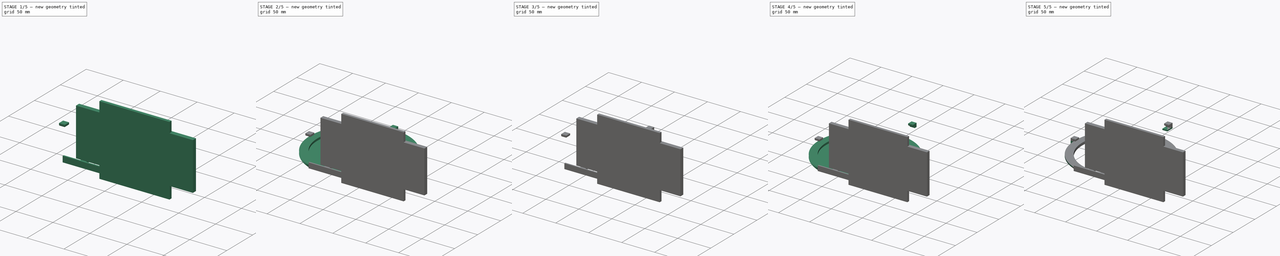
[diagram: build sequence overview — one tinted view per stage of 5, left to right]
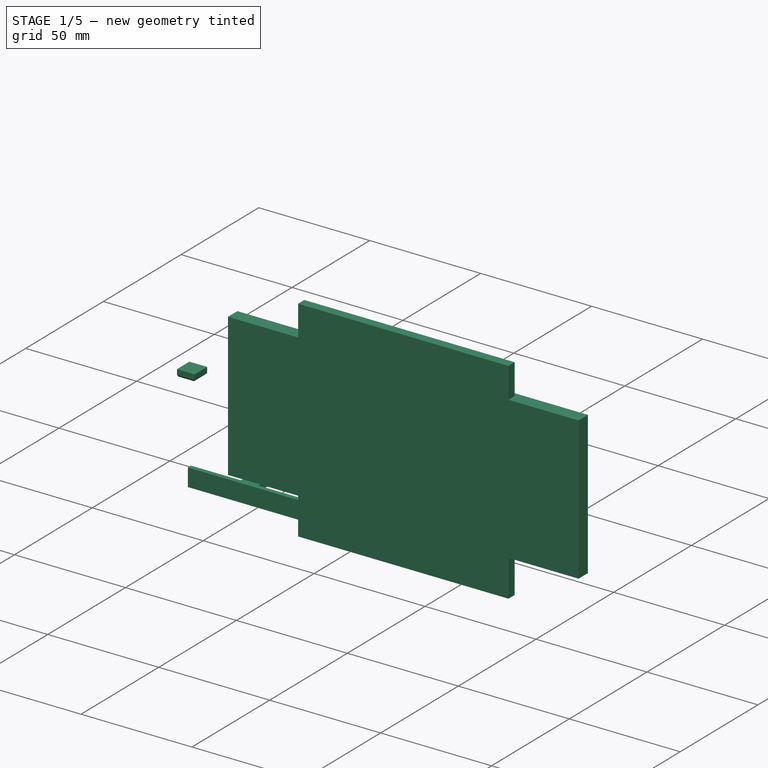
[diagram: stage 1 of 5 — iso view after this stage's code; geometry added in this stage tinted green]
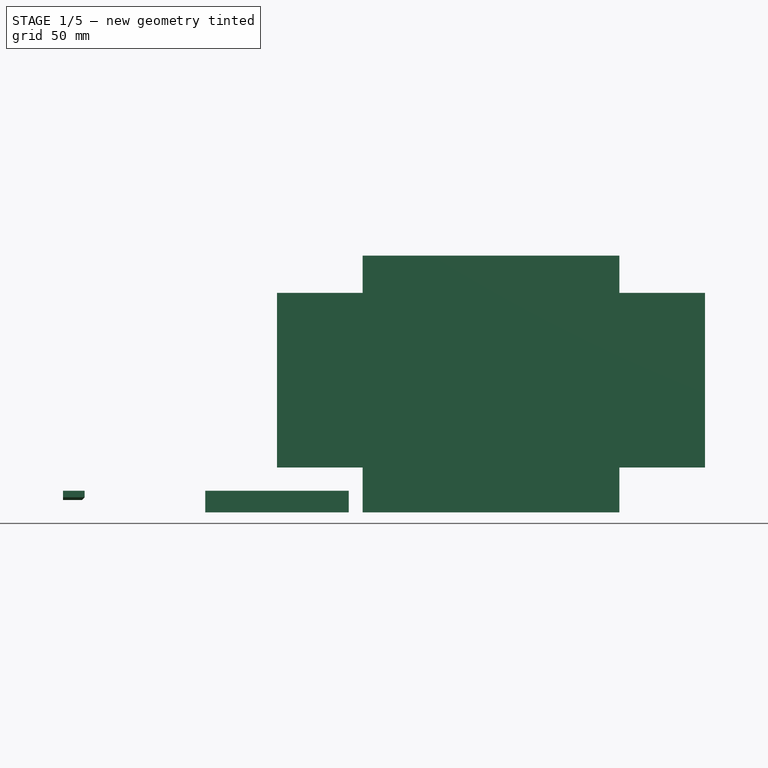
[diagram: stage 1 of 5 — front view after this stage's code; geometry added in this stage tinted green]
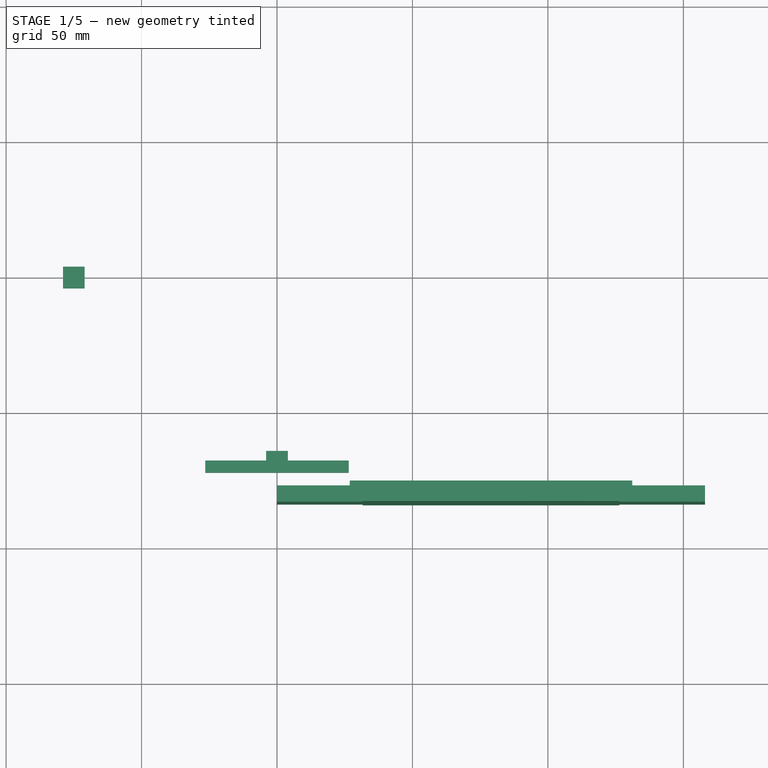
[diagram: stage 1 of 5 — top view after this stage's code; geometry added in this stage tinted green]
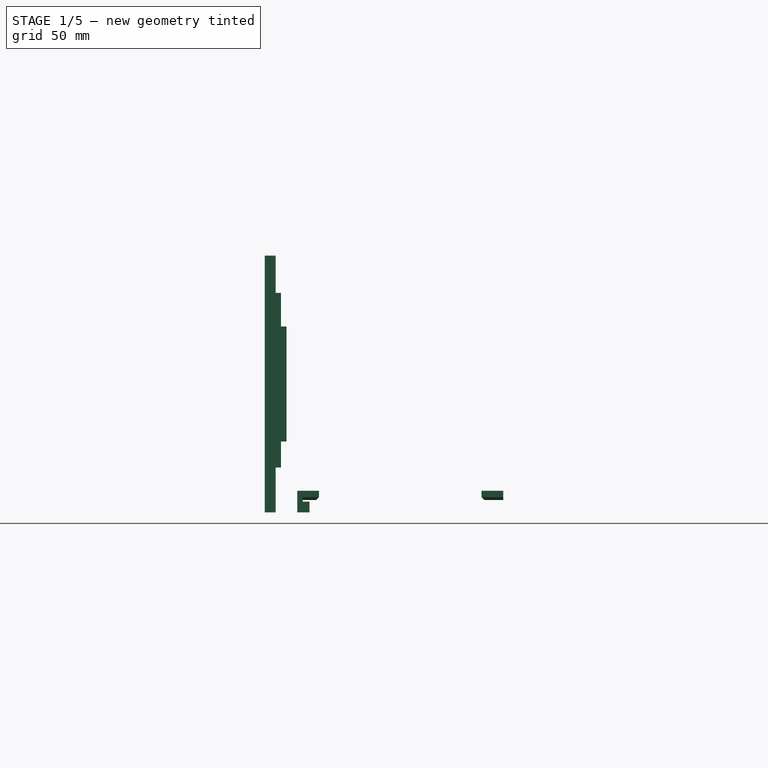
[diagram: stage 1 of 5 — right view after this stage's code; geometry added in this stage tinted green]
FCSTD DOCUMENT  (FreeCAD 0.19R0.19.2)
Label: waferHolder_010
License: All rights reserved
LicenseURL: http://en.wikipedia.org/wiki/All_rights_reserved
objects: Part::Box×21, Part::Chamfer×14, Part::Cut×8, Sketcher::SketchObject×5, Part::Extrusion×5, Part::MultiFuse×2
note: 55 computed .brp shape members not serialized (recipe doc carries the construction recipe); baked Part::Feature solids carry a one-line shape summary decoded from their .brp

FEATURE [Part::Box] Box006  label="holderBitLeft002"
  AttacherType = Attacher::AttachEngine3D
  Height = 3.4
  Length = 8
  Placement = pos=(-79,-4,4.6) rot=(0,0,1;0rad)
  Width = 8
FEATURE [Part::Chamfer] Chamfer005
  Base = -> Box006
  Edges = 1 edges r=1: [Edge8]
FEATURE [Part::Chamfer] Chamfer011
  Base = -> Chamfer005
  Edges = 1 edges r=1: [Edge5]
FEATURE [Part::Box] Box015  label="holderBottom"
  AttacherType = Attacher::AttachEngine3D
  Height = 4
  Length = 53
  Placement = pos=(-26.5,-72,0) rot=(0,0,1;0rad)
  Width = 4.5
FEATURE [Part::Box] Box016  label="holderBottom001"
  AttacherType = Attacher::AttachEngine3D
  Height = 4
  Length = 53
  Placement = pos=(-26.5,-72,4) rot=(0,0,1;0rad)
  Width = 2
FEATURE [Part::Box] Box017  label="holderBottom002"
  AttacherType = Attacher::AttachEngine3D
  Height = 3.4
  Length = 8
  Placement = pos=(-4,-72,4.6) rot=(0,0,1;0rad)
  Width = 8
FEATURE [Part::Chamfer] Chamfer013  label="holderBottom003"
  Base = -> Box017
  Edges = 3 edges r=1: [Edge4,Edge8,Edge11]
FEATURE [Part::Box] Box018  label="Cube"
  AttacherType = Attacher::AttachEngine3D
  Height = 64.44
  Length = 158
  Placement = pos=(0,-84,16.6) rot=(0,0,1;0rad)
  Width = 6
FEATURE [Part::Box] Box019  label="Cube001"
  AttacherType = Attacher::AttachEngine3D
  Height = 94.8
  Length = 94.8
  Placement = pos=(31.6,-84,0) rot=(0,0,1;0rad)
  Width = 4
FEATURE [Part::Box] Box020  label="Cube002"
  AttacherType = Attacher::AttachEngine3D
  Height = 42.44
  Length = 104.28
  Placement = pos=(26.86,-84,26.18) rot=(0,0,1;0rad)
  Width = 8
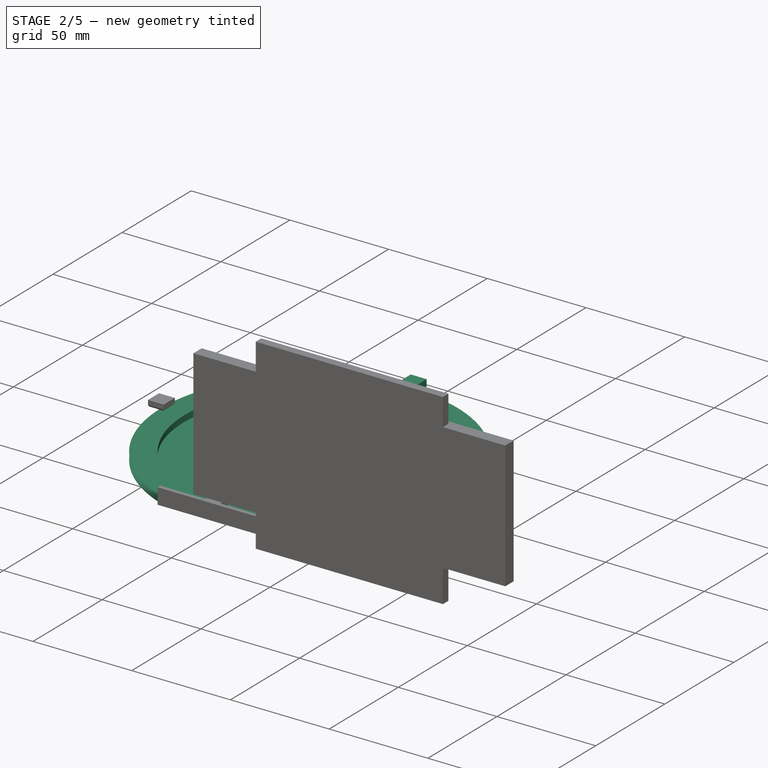
[diagram: stage 2 of 5 — iso view after this stage's code; geometry added in this stage tinted green]
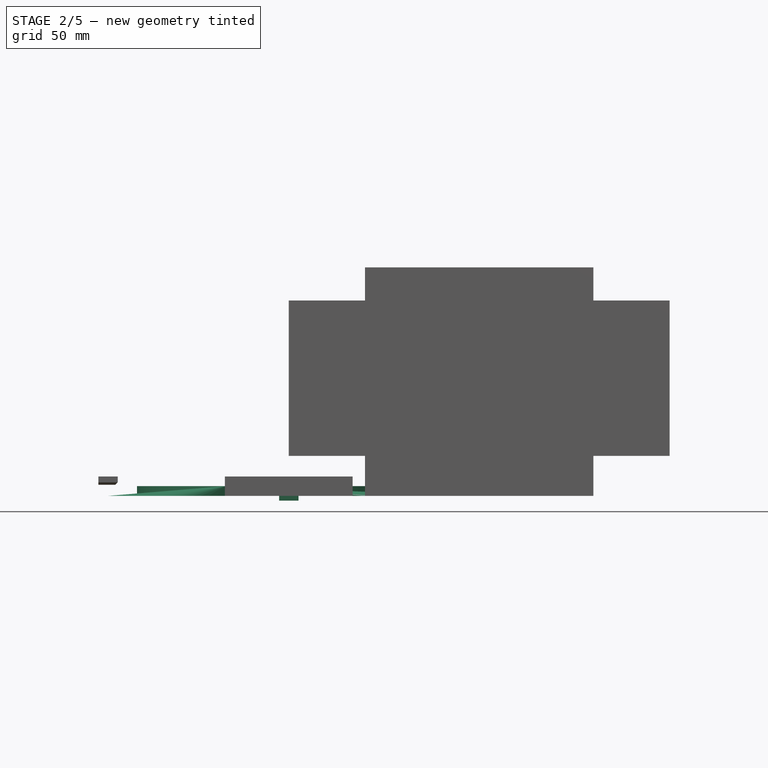
[diagram: stage 2 of 5 — front view after this stage's code; geometry added in this stage tinted green]
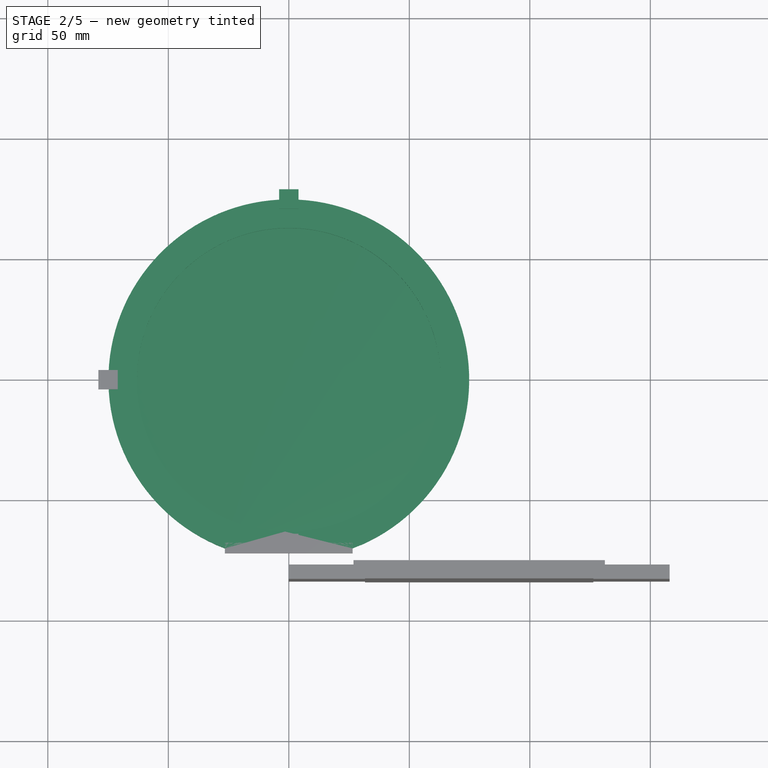
[diagram: stage 2 of 5 — top view after this stage's code; geometry added in this stage tinted green]
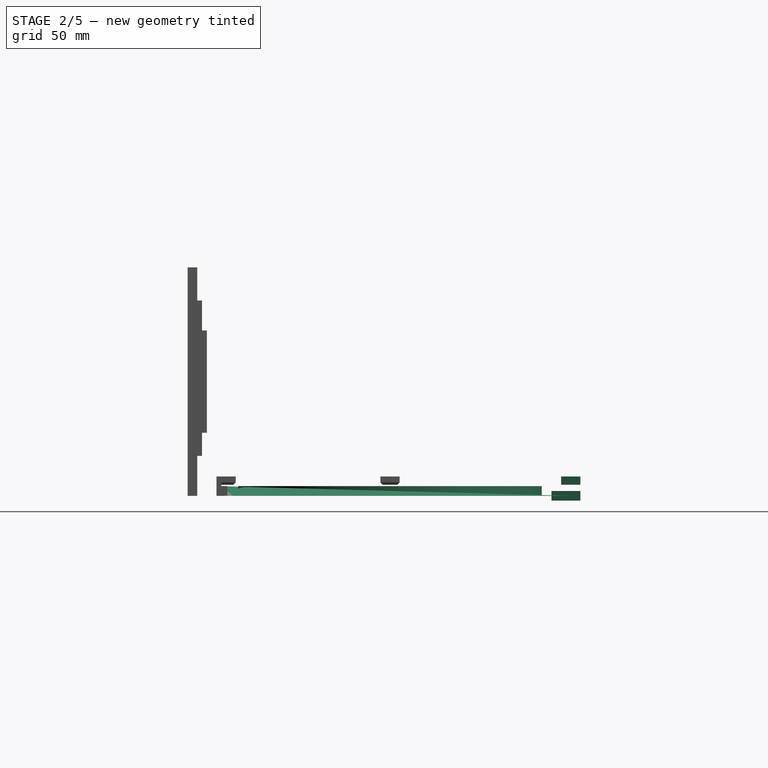
[diagram: stage 2 of 5 — right view after this stage's code; geometry added in this stage tinted green]
FEATURE [Part::Box] Box011  label="bitHolderTopCutout002"
  AttacherType = Attacher::AttachEngine3D
  Height = 4
  Length = 8
  Placement = pos=(-4,67,-2) rot=(0,0,1;0rad)
  Width = 12
FEATURE [Sketcher::SketchObject] Sketch003
  FullyConstrained = true
  sketch-geometry (3):
    g0: Circle CenterX=-3.1415e-12 CenterY=5.6243e-12 CenterZ=0 NormalX=0 NormalY=0 NormalZ=1 AngleXU=0 Radius=63
    g1: ArcOfCircle CenterX=-3.1415e-12 CenterY=5.6243e-12 CenterZ=0 NormalX=0 NormalY=0 NormalZ=1 AngleXU=0 Radius=74.8482 StartAngle=5.07429 EndAngle=10.6337
    g2: LineSegment StartX=-26.5 StartY=-70.0001 StartZ=0 EndX=26.5 EndY=-70.0001 EndZ=0
  constraints (6):
    c: Block(g0)
    c: Coincident(g1,g0)
    c: Block(g1)
    c: Coincident(g2,g1)
    c: Coincident(g2,g1)
    c: Horizontal(g2)
FEATURE [Part::Extrusion] Extrude003  label="mainHolderRing006"
  Base = -> Sketch003
  Dir = (0,0,1)
  DirMode = 2
  FaceMakerClass = Part::FaceMakerBullseye
  LengthFwd = 4
  LengthRev = 0
  Solid = true
  Symmetric = false
FEATURE [Part::Box] Box012  label="holderBitLeft005"
  AttacherType = Attacher::AttachEngine3D
  Height = 2
  Length = 8
  Placement = pos=(-4,71,2) rot=(0,0,1;0rad)
  Width = 8
FEATURE [Part::Box] Box013  label="bitHolderTopCutout003"
  AttacherType = Attacher::AttachEngine3D
  Height = 4
  Length = 8
  Placement = pos=(-4,67,-2) rot=(0,0,1;0rad)
  Width = 12
FEATURE [Sketcher::SketchObject] Sketch004
  FullyConstrained = true
  sketch-geometry (3):
    g0: Circle CenterX=-3.1415e-12 CenterY=5.6243e-12 CenterZ=0 NormalX=0 NormalY=0 NormalZ=1 AngleXU=0 Radius=63
    g1: ArcOfCircle CenterX=-3.1415e-12 CenterY=5.6243e-12 CenterZ=0 NormalX=0 NormalY=0 NormalZ=1 AngleXU=0 Radius=74.8482 StartAngle=5.07429 EndAngle=10.6337
    g2: LineSegment StartX=-26.5 StartY=-70.0001 StartZ=0 EndX=26.5 EndY=-70.0001 EndZ=0
  constraints (6):
    c: Block(g0)
    c: Coincident(g1,g0)
    c: Block(g1)
    c: Coincident(g2,g1)
    c: Coincident(g2,g1)
    c: Horizontal(g2)
FEATURE [Part::Extrusion] Extrude004  label="mainHolderRing008"
  Base = -> Sketch004
  Dir = (0,0,1)
  DirMode = 2
  FaceMakerClass = Part::FaceMakerBullseye
  LengthFwd = 4
  LengthRev = 0
  Solid = true
  Symmetric = false
FEATURE [Part::Chamfer] Chamfer003
  Base = -> Extrude004
  Edges = 1 edges r=2: [Edge3]
FEATURE [Part::Cut] Cut007  label="mainHolderRing007"
  Base = -> Chamfer003
  Tool = -> Box013
FEATURE [Part::Cut] Cut006  label="bitHolderTop003"
  Base = -> Box012
  Placement = pos=(0,0,4) rot=(0,0,1;0rad)
  Tool = -> Cut007
FEATURE [Part::Box] Box014  label="bitHoldertop006"
  AttacherType = Attacher::AttachEngine3D
  Height = 3.4
  Length = 8
  Placement = pos=(-4,71,4.6) rot=(0,0,1;0rad)
  Width = 8
FEATURE [Part::Chamfer] Chamfer012
  Base = -> Chamfer011
  Edges = 1 edges r=1: [Edge16]
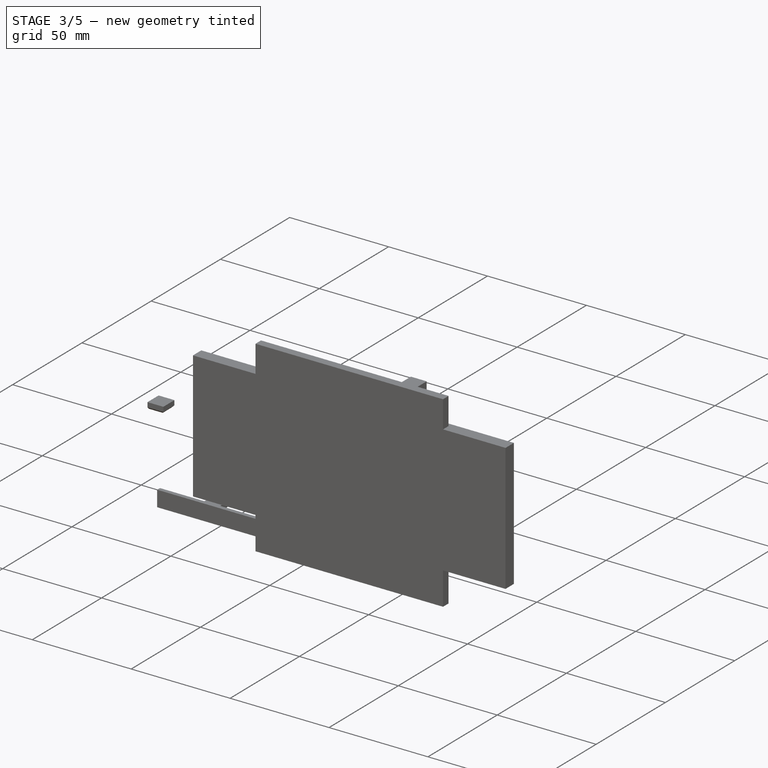
[diagram: stage 3 of 5 — iso view after this stage's code; geometry added in this stage tinted green]
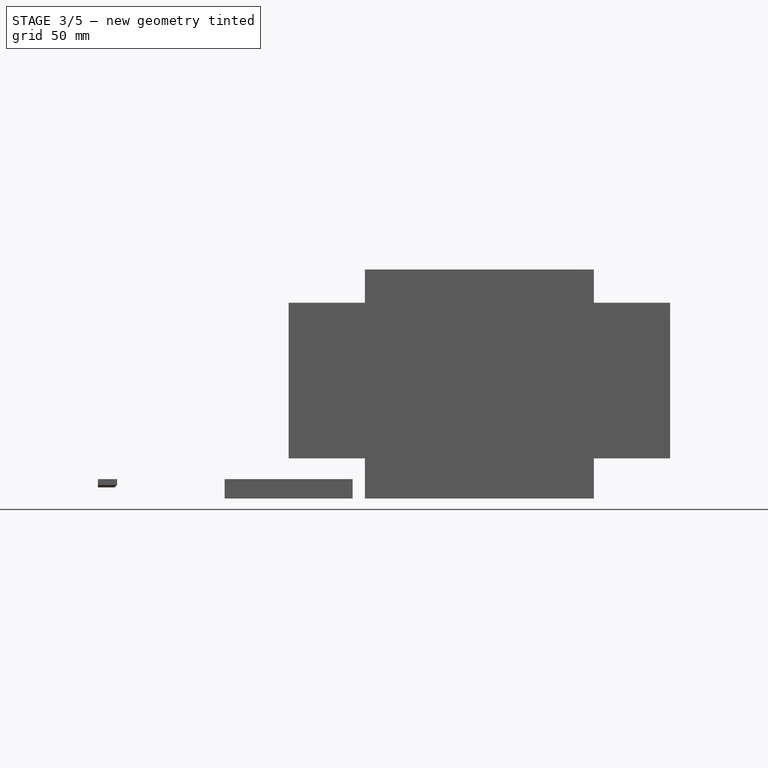
[diagram: stage 3 of 5 — front view after this stage's code; geometry added in this stage tinted green]
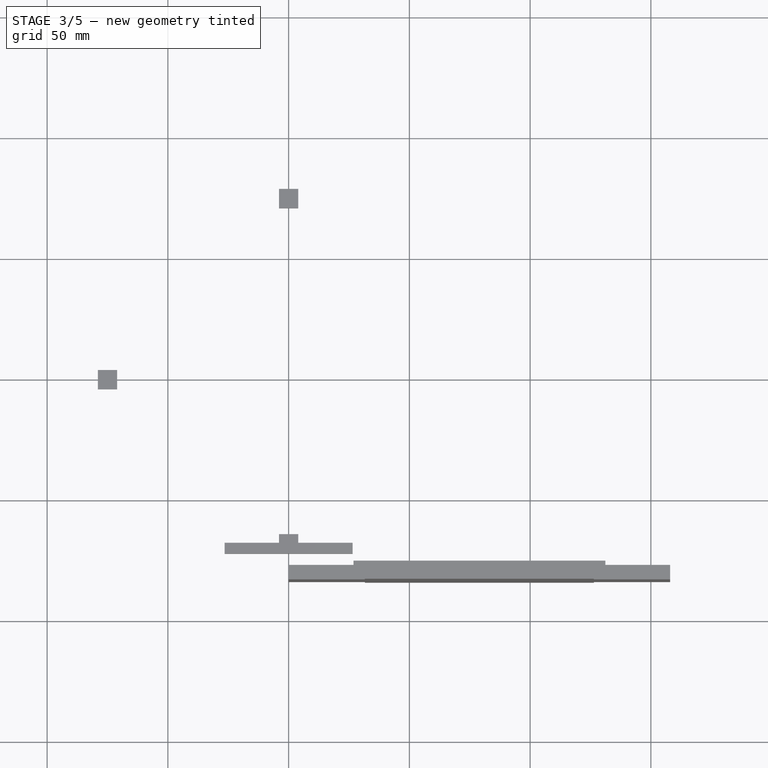
[diagram: stage 3 of 5 — top view after this stage's code; geometry added in this stage tinted green]
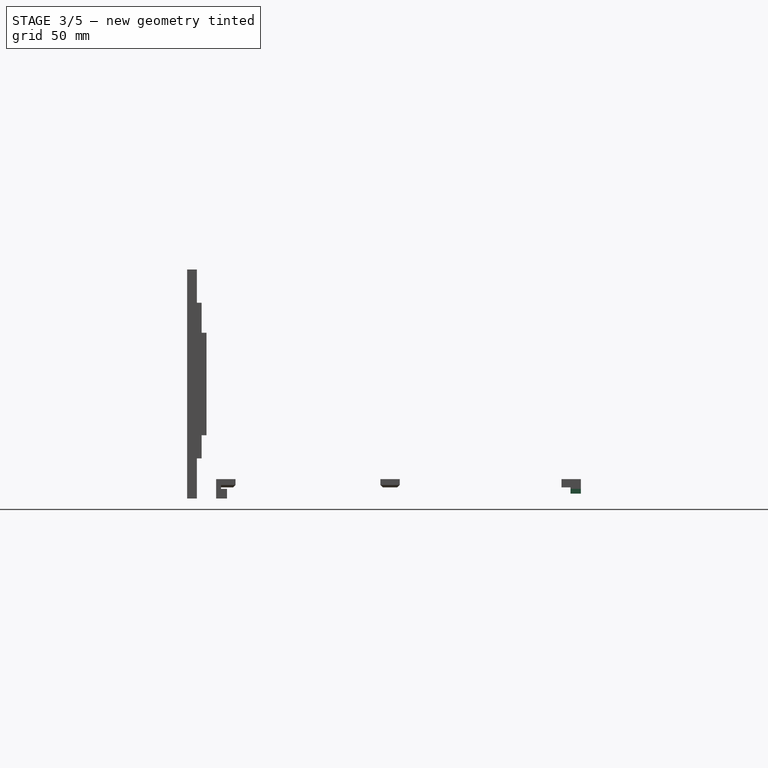
[diagram: stage 3 of 5 — right view after this stage's code; geometry added in this stage tinted green]
FEATURE [Part::Box] Box008  label="holderBitLeft003"
  AttacherType = Attacher::AttachEngine3D
  Height = 2
  Length = 8
  Placement = pos=(-4,71,2) rot=(0,0,1;0rad)
  Width = 8
FEATURE [Part::Box] Box009  label="bitHolderTopCutout001"
  AttacherType = Attacher::AttachEngine3D
  Height = 4
  Length = 8
  Placement = pos=(-4,67,-2) rot=(0,0,1;0rad)
  Width = 12
FEATURE [Sketcher::SketchObject] Sketch002
  FullyConstrained = true
  sketch-geometry (3):
    g0: Circle CenterX=-3.1415e-12 CenterY=5.6243e-12 CenterZ=0 NormalX=0 NormalY=0 NormalZ=1 AngleXU=0 Radius=63
    g1: ArcOfCircle CenterX=-3.1415e-12 CenterY=5.6243e-12 CenterZ=0 NormalX=0 NormalY=0 NormalZ=1 AngleXU=0 Radius=74.8482 StartAngle=5.07429 EndAngle=10.6337
    g2: LineSegment StartX=-26.5 StartY=-70.0001 StartZ=0 EndX=26.5 EndY=-70.0001 EndZ=0
  constraints (6):
    c: Block(g0)
    c: Coincident(g1,g0)
    c: Block(g1)
    c: Coincident(g2,g1)
    c: Coincident(g2,g1)
    c: Horizontal(g2)
FEATURE [Part::Extrusion] Extrude002  label="mainHolderRing003"
  Base = -> Sketch002
  Dir = (0,0,1)
  DirMode = 2
  FaceMakerClass = Part::FaceMakerBullseye
  LengthFwd = 4
  LengthRev = 0
  Solid = true
  Symmetric = false
FEATURE [Part::Chamfer] Chamfer001
  Base = -> Extrude002
  Edges = 1 edges r=2: [Edge3]
FEATURE [Part::Cut] Cut002  label="mainHolderRing004"
  Base = -> Chamfer001
  Tool = -> Box009
FEATURE [Part::Cut] Cut003  label="bitHolderTop001"
  Base = -> Box008
  Tool = -> Cut002
FEATURE [Part::Box] Box010  label="holderBitLeft004"
  AttacherType = Attacher::AttachEngine3D
  Height = 2
  Length = 8
  Placement = pos=(-4,71,2) rot=(0,0,1;0rad)
  Width = 8
FEATURE [Part::Chamfer] Chamfer002
  Base = -> Extrude003
  Edges = 1 edges r=2: [Edge3]
FEATURE [Part::Cut] Cut005  label="mainHolderRing005"
  Base = -> Chamfer002
  Tool = -> Box011
FEATURE [Part::Cut] Cut004  label="bitHolderTop002"
  Base = -> Box010
  Placement = pos=(0,0,2) rot=(0,0,1;0rad)
  Tool = -> Cut005
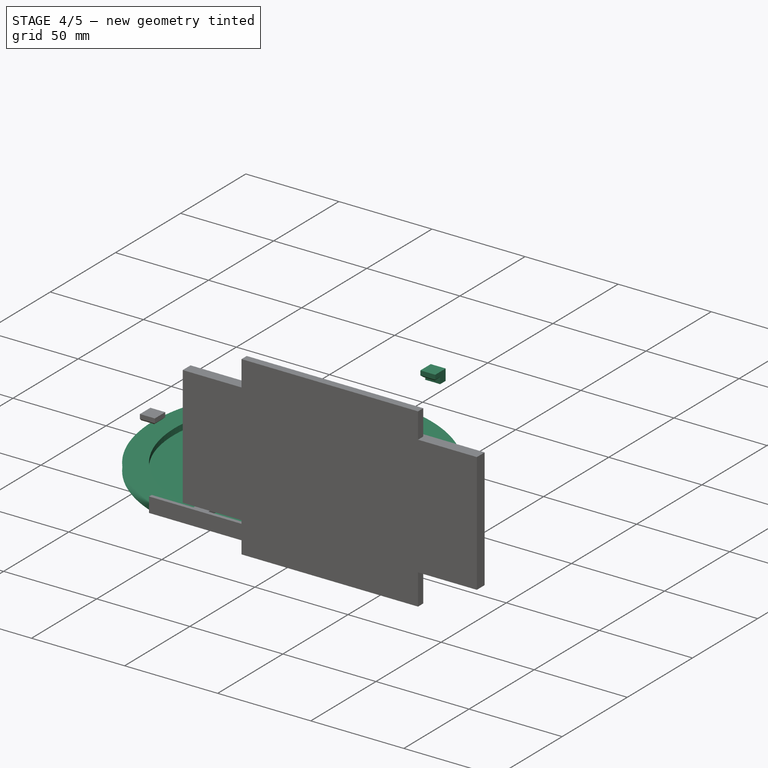
[diagram: stage 4 of 5 — iso view after this stage's code; geometry added in this stage tinted green]
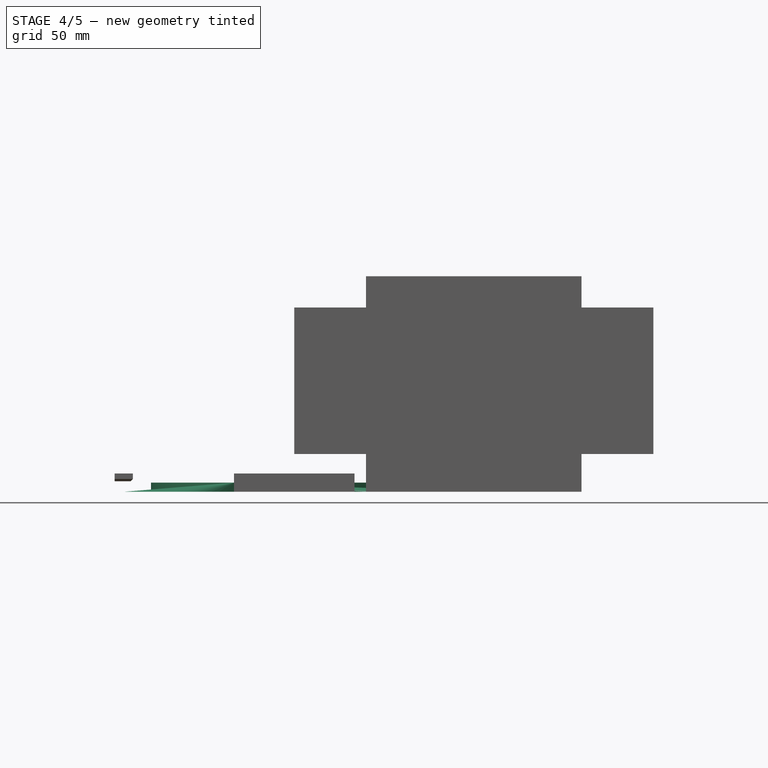
[diagram: stage 4 of 5 — front view after this stage's code; geometry added in this stage tinted green]
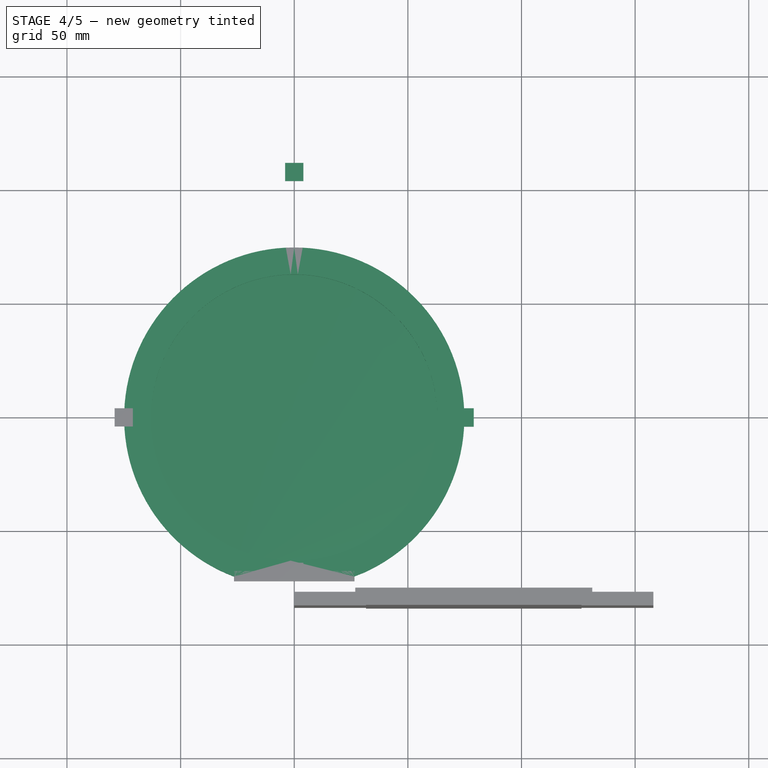
[diagram: stage 4 of 5 — top view after this stage's code; geometry added in this stage tinted green]
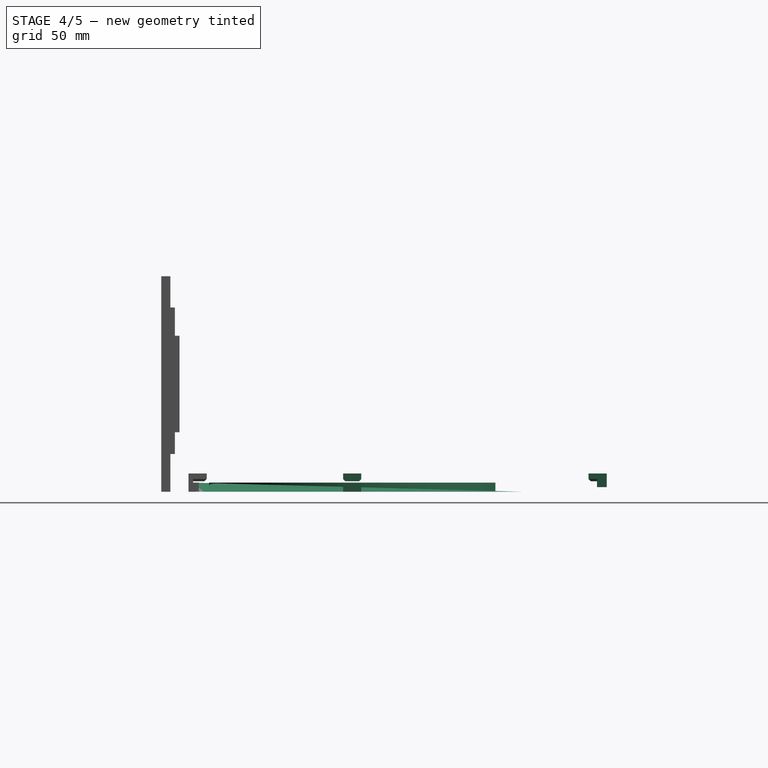
[diagram: stage 4 of 5 — right view after this stage's code; geometry added in this stage tinted green]
FEATURE [Part::Box] Box005  label="holderBitright002"
  AttacherType = Attacher::AttachEngine3D
  Height = 4
  Length = 6
  Placement = pos=(73,-4,0) rot=(0,0,1;0rad)
  Width = 8
FEATURE [Sketcher::SketchObject] Sketch001
  FullyConstrained = true
  sketch-geometry (3):
    g0: Circle CenterX=-3.1415e-12 CenterY=5.6243e-12 CenterZ=0 NormalX=0 NormalY=0 NormalZ=1 AngleXU=0 Radius=63
    g1: ArcOfCircle CenterX=-3.1415e-12 CenterY=5.6243e-12 CenterZ=0 NormalX=0 NormalY=0 NormalZ=1 AngleXU=0 Radius=74.8482 StartAngle=5.07429 EndAngle=10.6337
    g2: LineSegment StartX=-26.5 StartY=-70.0001 StartZ=0 EndX=26.5 EndY=-70.0001 EndZ=0
  constraints (6):
    c: Block(g0)
    c: Coincident(g1,g0)
    c: Block(g1)
    c: Coincident(g2,g1)
    c: Coincident(g2,g1)
    c: Horizontal(g2)
FEATURE [Part::Extrusion] Extrude001  label="mainHolderRing002"
  Base = -> Sketch001
  Dir = (0,0,1)
  DirMode = 2
  FaceMakerClass = Part::FaceMakerBullseye
  LengthFwd = 4
  LengthRev = 0
  Solid = true
  Symmetric = false
FEATURE [Part::Box] Box007  label="holderBitRight002"
  AttacherType = Attacher::AttachEngine3D
  Height = 3.4
  Length = 8
  Placement = pos=(71,-4,4.6) rot=(0,0,1;0rad)
  Width = 8
FEATURE [Part::MultiFuse] Fusion001  label="holderTop"
  Placement = pos=(0,33,0) rot=(0,0,1;0rad)
  Shapes = -> [Cut003,Cut004,Cut006,Box014]
FEATURE [Part::Chamfer] Chamfer004
  Base = -> Fusion001
  Edges = 1 edges r=1: [Edge16]
FEATURE [Part::Chamfer] Chamfer006
  Base = -> Box007
  Edges = 1 edges r=1: [Edge4]
FEATURE [Part::Chamfer] Chamfer007
  Base = -> Chamfer006
  Edges = 1 edges r=1: [Edge13]
FEATURE [Part::Chamfer] Chamfer008
  Base = -> Chamfer007
  Edges = 1 edges r=1: [Edge5]
FEATURE [Part::Chamfer] Chamfer009
  Base = -> Chamfer004
  Edges = 1 edges r=1: [Edge1]
FEATURE [Part::Chamfer] Chamfer010
  Base = -> Chamfer009
  Edges = 1 edges r=1: [Edge32]
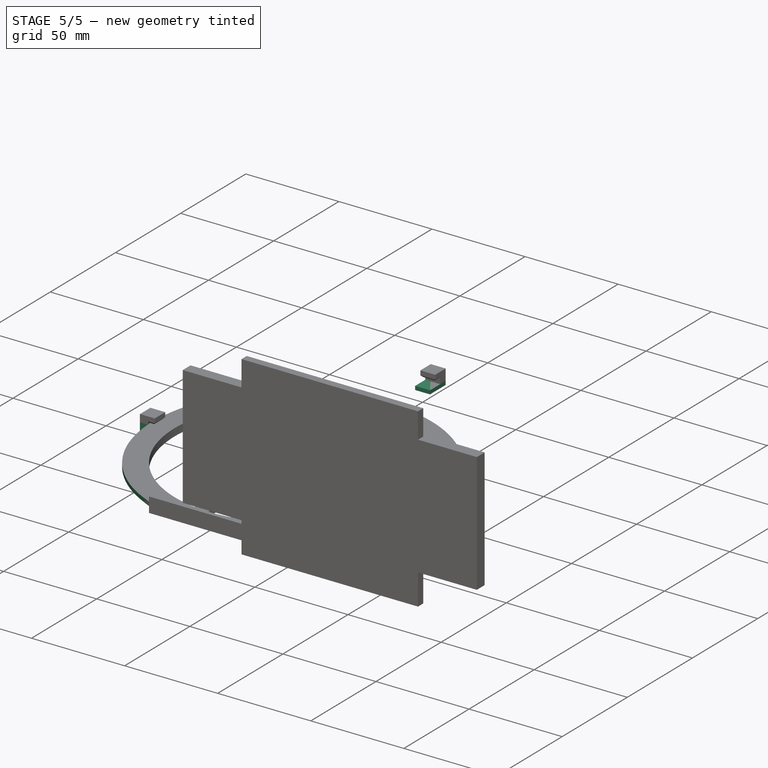
[diagram: stage 5 of 5 — iso view after this stage's code; geometry added in this stage tinted green]
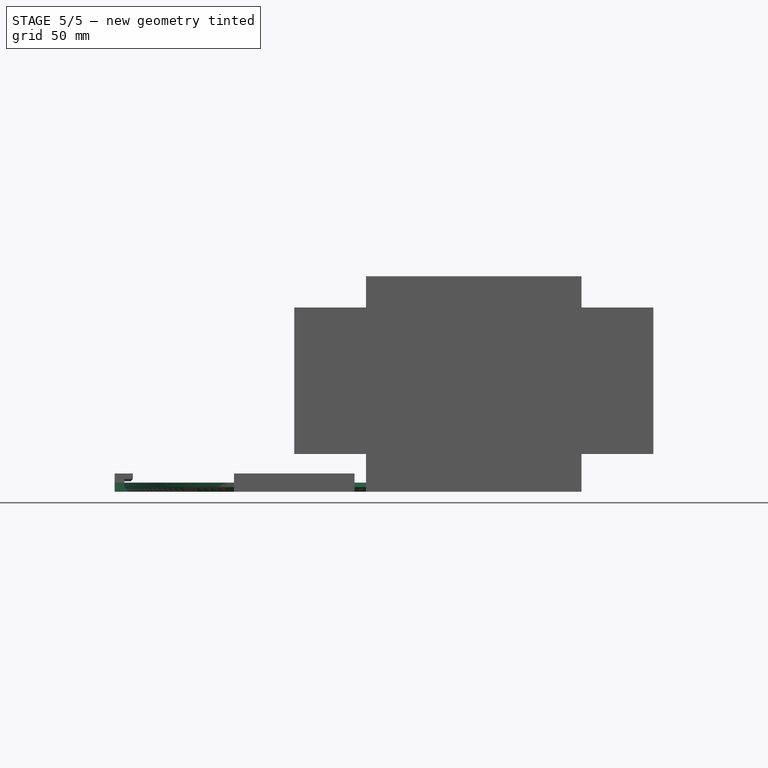
[diagram: stage 5 of 5 — front view after this stage's code; geometry added in this stage tinted green]
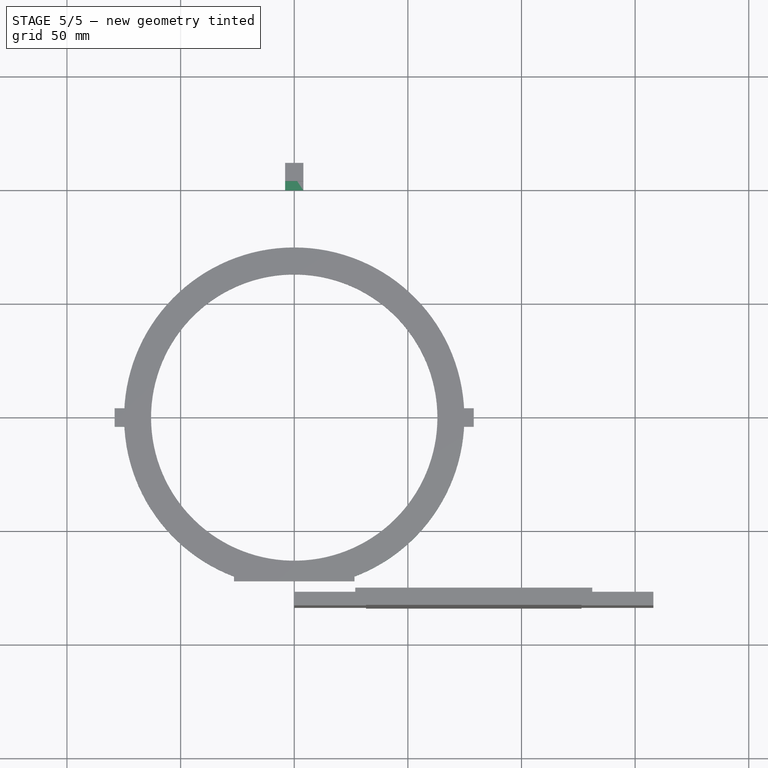
[diagram: stage 5 of 5 — top view after this stage's code; geometry added in this stage tinted green]
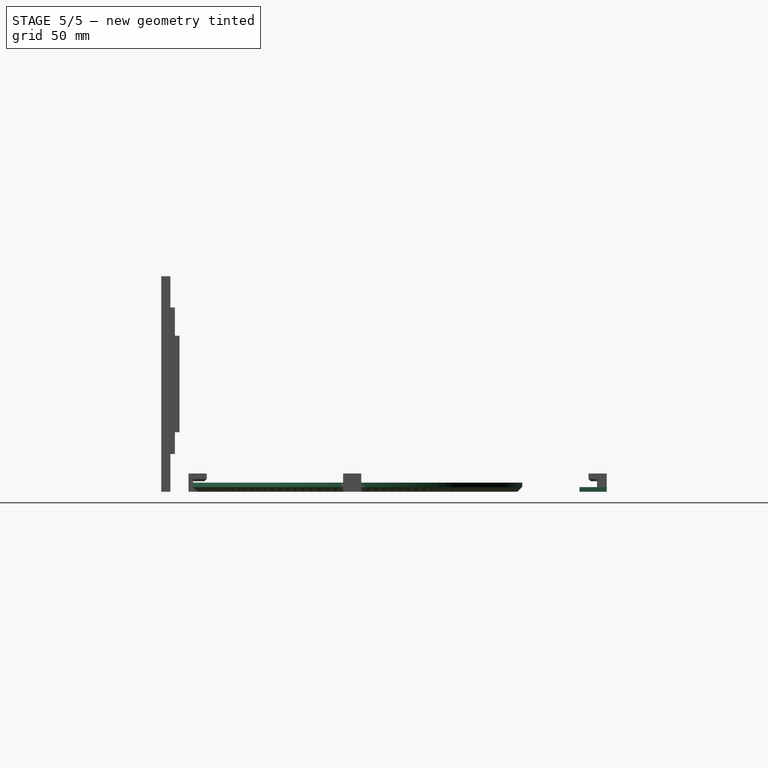
[diagram: stage 5 of 5 — right view after this stage's code; geometry added in this stage tinted green]
FEATURE [Sketcher::SketchObject] Sketch
  FullyConstrained = true
  sketch-geometry (3):
    g0: Circle CenterX=-3.1415e-12 CenterY=5.6243e-12 CenterZ=0 NormalX=0 NormalY=0 NormalZ=1 AngleXU=0 Radius=63
    g1: ArcOfCircle CenterX=-3.1415e-12 CenterY=5.6243e-12 CenterZ=0 NormalX=0 NormalY=0 NormalZ=1 AngleXU=0 Radius=74.8482 StartAngle=5.07429 EndAngle=10.6337
    g2: LineSegment StartX=-26.5 StartY=-70.0001 StartZ=0 EndX=26.5 EndY=-70.0001 EndZ=0
  constraints (6):
    c: Block(g0)
    c: Coincident(g1,g0)
    c: Block(g1)
    c: Coincident(g2,g1)
    c: Coincident(g2,g1)
    c: Horizontal(g2)
FEATURE [Part::Box] Box  label="holderBitLeft"
  AttacherType = Attacher::AttachEngine3D
  Height = 4
  Length = 8
  Placement = pos=(-79,-4,0) rot=(0,0,1;0rad)
  Width = 8
FEATURE [Part::Box] Box001  label="bitHolderTopCutout"
  AttacherType = Attacher::AttachEngine3D
  Height = 4
  Length = 8
  Placement = pos=(-4,67,-2) rot=(0,0,1;0rad)
  Width = 12
FEATURE [Part::Extrusion] Extrude  label="mainHolderRing"
  Base = -> Sketch
  Dir = (0,0,1)
  DirMode = 2
  FaceMakerClass = Part::FaceMakerBullseye
  LengthFwd = 4
  LengthRev = 0
  Solid = true
  Symmetric = false
FEATURE [Part::Box] Box002  label="holderBitRight"
  AttacherType = Attacher::AttachEngine3D
  Height = 4
  Length = 8
  Placement = pos=(71,-4,0) rot=(0,0,1;0rad)
  Width = 8
FEATURE [Part::Box] Box003  label="bitHolderTop"
  AttacherType = Attacher::AttachEngine3D
  Height = 2
  Length = 8
  Placement = pos=(-4,100,0) rot=(0,0,1;0rad)
  Width = 12
FEATURE [Part::Chamfer] Chamfer
  Base = -> Extrude
  Edges = 1 edges r=2: [Edge3]
FEATURE [Part::Cut] Cut  label="mainHolderRing001"
  Base = -> Chamfer
  Tool = -> Box001
FEATURE [Part::Box] Box004  label="holderBitLeft001"
  AttacherType = Attacher::AttachEngine3D
  Height = 4
  Length = 6
  Placement = pos=(-79,-4,0) rot=(0,0,1;0rad)
  Width = 8
FEATURE [Part::MultiFuse] Fusion  label="holders"
  Shapes = -> [Box004,Box005]
FEATURE [Part::Cut] Cut001  label="leftAndRightHolderBits"
  Base = -> Fusion
  Placement = pos=(0,0,4) rot=(0,0,1;0rad)
  Tool = -> Extrude001
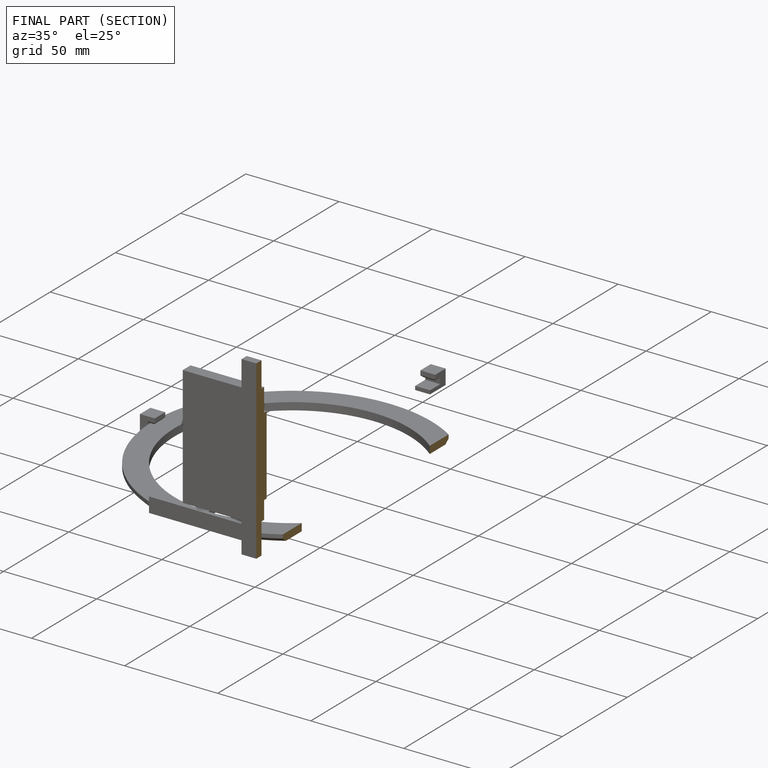
[diagram: finished part — half-section view (interior)]
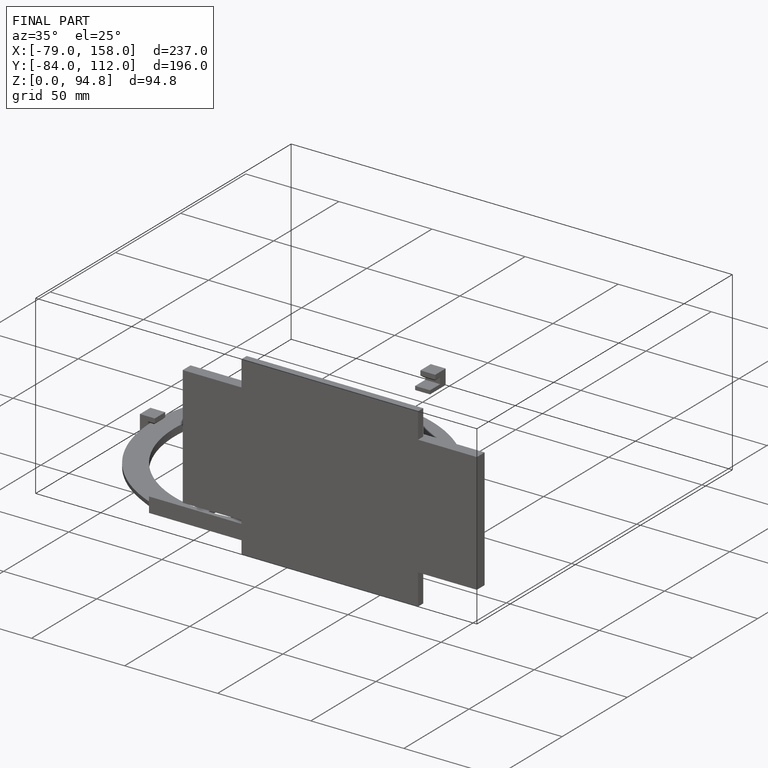
[diagram: finished part — iso view with bounding-box wireframe]
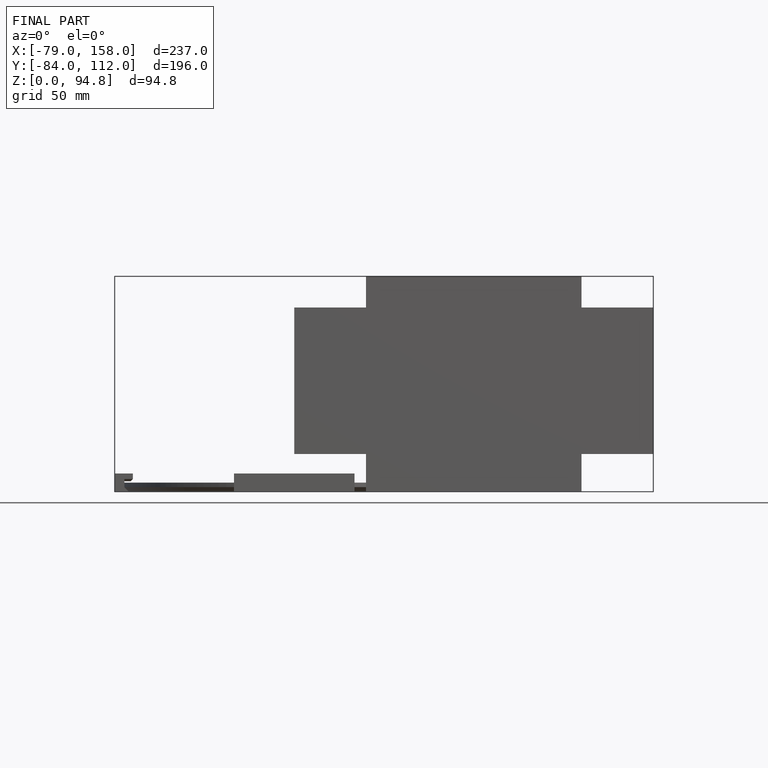
[diagram: finished part — front view with bounding-box wireframe]
